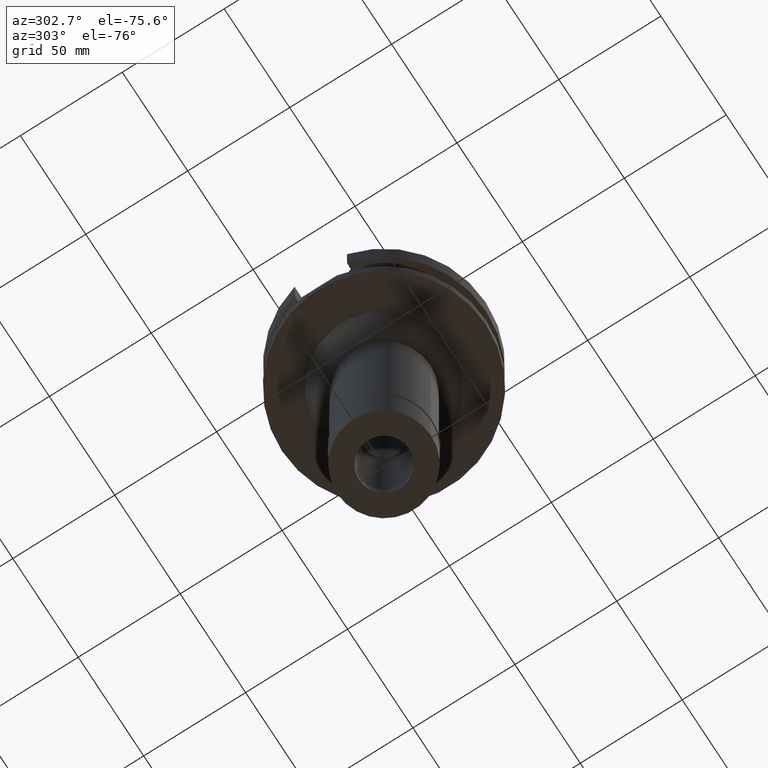
[diagram: clean part render]
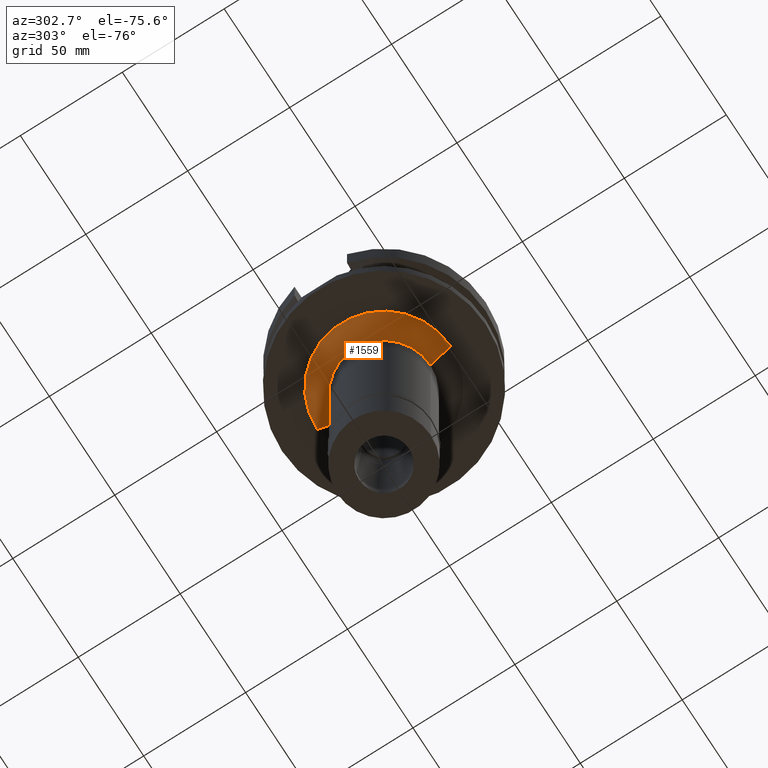
[diagram: same view with one face highlighted and labeled with its STEP entity id]
A machine part, auxiliary view. The second image highlights one B-rep face of the part: STEP entity #1559.
In plain terms, the highlighted conical surface has half-angle 45 deg.
Its self-contained STEP definition (entity closure, byte-faithful):
#3 = DIRECTION ( 'NONE',  ( 0.0000000000000000000, 0.0000000000000000000, 1.000000000000000000 ) ) ;
#134 = VERTEX_POINT ( 'NONE', #2916 ) ;
#216 = LINE ( 'NONE', #1446, #2823 ) ;
#264 = LINE ( 'NONE', #2698, #2621 ) ;
#337 = ORIENTED_EDGE ( 'NONE', *, *, #2470, .F. ) ;
#411 = VERTEX_POINT ( 'NONE', #1642 ) ;
#446 = DIRECTION ( 'NONE',  ( 0.0000000000000000000, 1.000000000000000000, 0.0000000000000000000 ) ) ;
#608 = DIRECTION ( 'NONE',  ( 0.0000000000000000000, -1.000000000000000000, 0.0000000000000000000 ) ) ;
#661 = CARTESIAN_POINT ( 'NONE',  ( 0.0000000000000000000, 0.0000000000000000000, -43.00000000000000000 ) ) ;
#924 = EDGE_CURVE ( 'NONE', #3012, #1999, #216, .T. ) ;
#928 = FACE_OUTER_BOUND ( 'NONE', #2726, .T. ) ;
#977 = AXIS2_PLACEMENT_3D ( 'NONE', #1203, #2188, #1007 ) ;
#1002 = DIRECTION ( 'NONE',  ( 0.0000000000000000000, -0.7071067811865474617, -0.7071067811865474617 ) ) ;
#1007 = DIRECTION ( 'NONE',  ( 0.0000000000000000000, -1.000000000000000000, 0.0000000000000000000 ) ) ;
#1019 = ORIENTED_EDGE ( 'NONE', *, *, #924, .F. ) ;
#1058 = CARTESIAN_POINT ( 'NONE',  ( 0.0000000000000000000, 0.0000000000000000000, -38.00000000000000000 ) ) ;
#1203 = CARTESIAN_POINT ( 'NONE',  ( 0.0000000000000000000, 0.0000000000000000000, -48.00000000000000000 ) ) ;
#1295 = DIRECTION ( 'NONE',  ( 0.0000000000000000000, 0.0000000000000000000, -1.000000000000000000 ) ) ;
#1446 = CARTESIAN_POINT ( 'NONE',  ( 0.0000000000000000000, -32.75000000000000000, -38.00000000000000000 ) ) ;
#1559 = ADVANCED_FACE ( 'NONE', ( #928 ), #2771, .T. ) ;
#1642 = CARTESIAN_POINT ( 'NONE',  ( 0.0000000000000000000, 22.75000000000000000, -48.00000000000000000 ) ) ;
#1790 = AXIS2_PLACEMENT_3D ( 'NONE', #661, #3, #446 ) ;
#1858 = CARTESIAN_POINT ( 'NONE',  ( 0.0000000000000000000, -32.75000000000000000, -38.00000000000000000 ) ) ;
#1896 = CIRCLE ( 'NONE', #3035, 32.75000000000000000 ) ;
#1930 = EDGE_CURVE ( 'NONE', #3012, #134, #1896, .T. ) ;
#1999 = VERTEX_POINT ( 'NONE', #2597 ) ;
#2104 = EDGE_CURVE ( 'NONE', #134, #411, #264, .T. ) ;
#2188 = DIRECTION ( 'NONE',  ( 0.0000000000000000000, 0.0000000000000000000, -1.000000000000000000 ) ) ;
#2231 = ORIENTED_EDGE ( 'NONE', *, *, #1930, .T. ) ;
#2380 = DIRECTION ( 'NONE',  ( 0.0000000000000000000, 0.7071067811865474617, -0.7071067811865474617 ) ) ;
#2470 = EDGE_CURVE ( 'NONE', #1999, #411, #2984, .T. ) ;
#2565 = ORIENTED_EDGE ( 'NONE', *, *, #2104, .T. ) ;
#2597 = CARTESIAN_POINT ( 'NONE',  ( 0.0000000000000000000, -22.75000000000000000, -48.00000000000000000 ) ) ;
#2621 = VECTOR ( 'NONE', #1002, 1000.000000000000114 ) ;
#2698 = CARTESIAN_POINT ( 'NONE',  ( 0.0000000000000000000, 32.75000000000000000, -38.00000000000000000 ) ) ;
#2726 = EDGE_LOOP ( 'NONE', ( #337, #1019, #2231, #2565 ) ) ;
#2771 = CONICAL_SURFACE ( 'NONE', #1790, 27.75000000000000000, 0.7853981633972997312 ) ;
#2823 = VECTOR ( 'NONE', #2380, 1000.000000000000114 ) ;
#2916 = CARTESIAN_POINT ( 'NONE',  ( 0.0000000000000000000, 32.75000000000000000, -38.00000000000000000 ) ) ;
#2984 = CIRCLE ( 'NONE', #977, 22.75000000000000000 ) ;
#3012 = VERTEX_POINT ( 'NONE', #1858 ) ;
#3035 = AXIS2_PLACEMENT_3D ( 'NONE', #1058, #1295, #608 ) ;